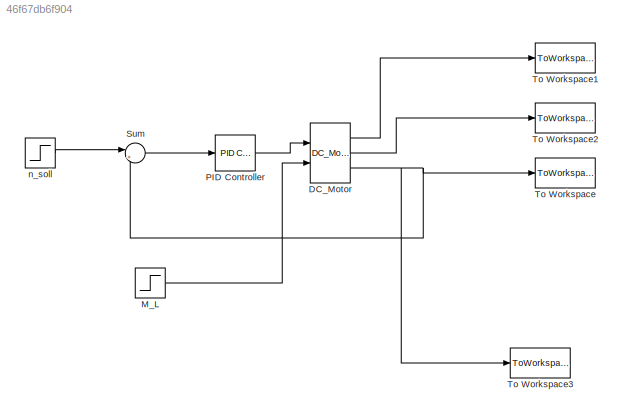
MODEL slx_46f67db6f904
KIND model
CONFIG AbsTol = auto
CONFIG FixedStep = auto
CONFIG MaxStep = auto
CONFIG MinStep = auto
CONFIG RelTol = 1e-3
CONFIG SampleTimeConstraint = Unconstrained
CONFIG Solver = VariableStepAuto
CONFIG SolverMode = Auto
CONFIG SolverName = VariableStepAuto
CONFIG StartTime = 0.0
CONFIG StopTime = 10.0
BLOCK [Reference] DC_Motor   REF=a71real/DC_Motor  (lib defined in slx_e63af9bf457c)

  Ports = [2, 3]
  SourceBlock = a71real/DC_Motor
  SourceType = SubSystem
BLOCK [Step] M_L
  After = M_L2
  AttributesFormatString = %<Before>\n%<After>\n%<Time>
  Before = M_L1
  SampleTime = 0
  Time = t_ML_step
BLOCK [Reference] PID Controller  REF=simulink/Continuous/PID Controller
  Ports = [1, 1]
  SourceBlock = simulink/Continuous/PID Controller
  SourceType = PID 1dof
BLOCK [Sum] Sum
  IconShape = round
  InputSameDT = off
  Inputs = |+-
  OutDataTypeStr = Inherit: Inherit via internal rule
  Ports = [2, 1]
  SaturateOnIntegerOverflow = off
BLOCK [ToWorkspace] To Workspace
  FixptAsFi = on
  MaxDataPoints = inf
  Ports = [1]
  SampleTime = -1
  Save2DSignal = 3-D array (concatenate along third dimension)
  SaveFormat = Timeseries
  VariableName = n_ist
BLOCK [ToWorkspace] To Workspace1
  FixptAsFi = on
  MaxDataPoints = inf
  Ports = [1]
  SampleTime = -1
  Save2DSignal = 3-D array (concatenate along third dimension)
  SaveFormat = Timeseries
  VariableName = i_A
BLOCK [ToWorkspace] To Workspace2
  FixptAsFi = on
  MaxDataPoints = inf
  Ports = [1]
  SampleTime = -1
  Save2DSignal = 3-D array (concatenate along third dimension)
  SaveFormat = Timeseries
  VariableName = om_A
BLOCK [ToWorkspace] To Workspace3
  FixptAsFi = on
  MaxDataPoints = inf
  Ports = [1]
  SampleTime = -1
  Save2DSignal = 3-D array (concatenate along third dimension)
  SaveFormat = Timeseries
  VariableName = n_A
BLOCK [Step] n_soll
  After = n_soll
  AttributesFormatString = %<Before>\n%<After>\n%<Time>
  SampleTime = 0
  Time = t_n_soll_step
LINE DC_Motor :1 -> To Workspace1:1
LINE DC_Motor :2 -> To Workspace2:1
NET DC_Motor :3 -> Sum:2, To Workspace3:1, To Workspace:1
LINE M_L:1 -> DC_Motor :2
LINE PID Controller:1 -> DC_Motor :1
LINE Sum:1 -> PID Controller:1
LINE n_soll:1 -> Sum:1
note: NET lines group one-source signal fan-out (src -> all destinations, sorted); 1:1 wires keep LINE
